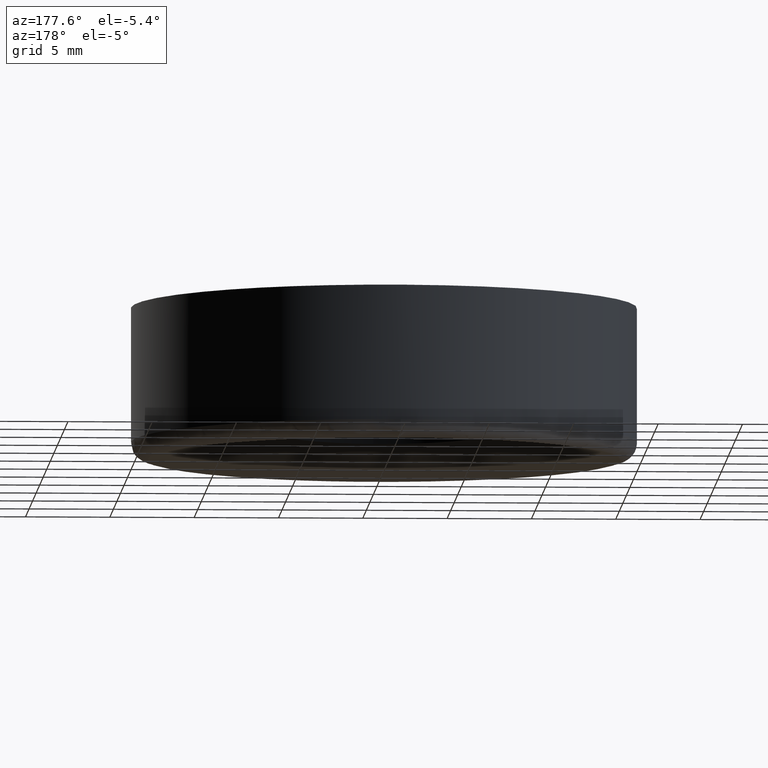
[diagram: clean part render]
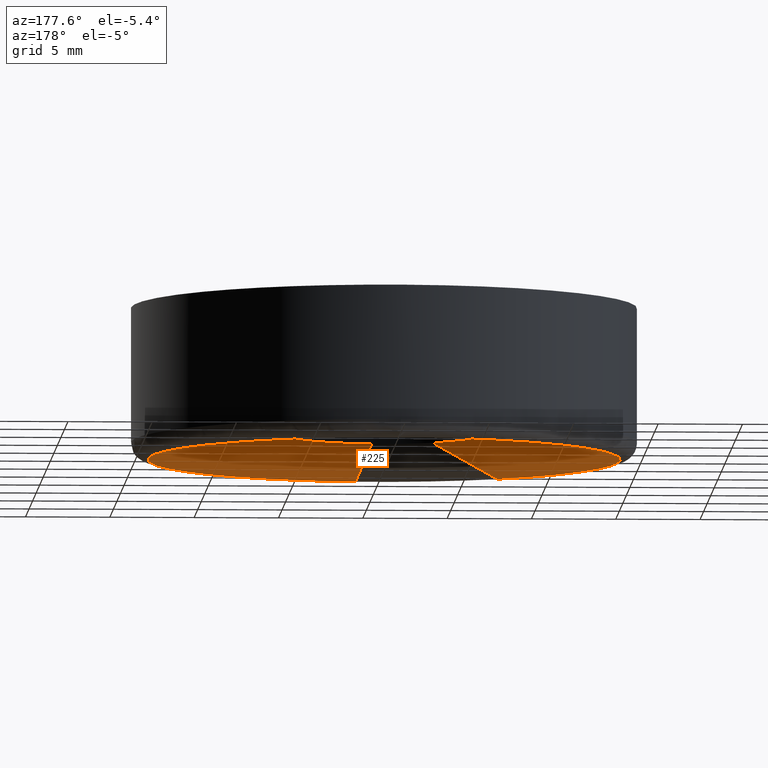
[diagram: same view with one face highlighted and labeled with its STEP entity id]
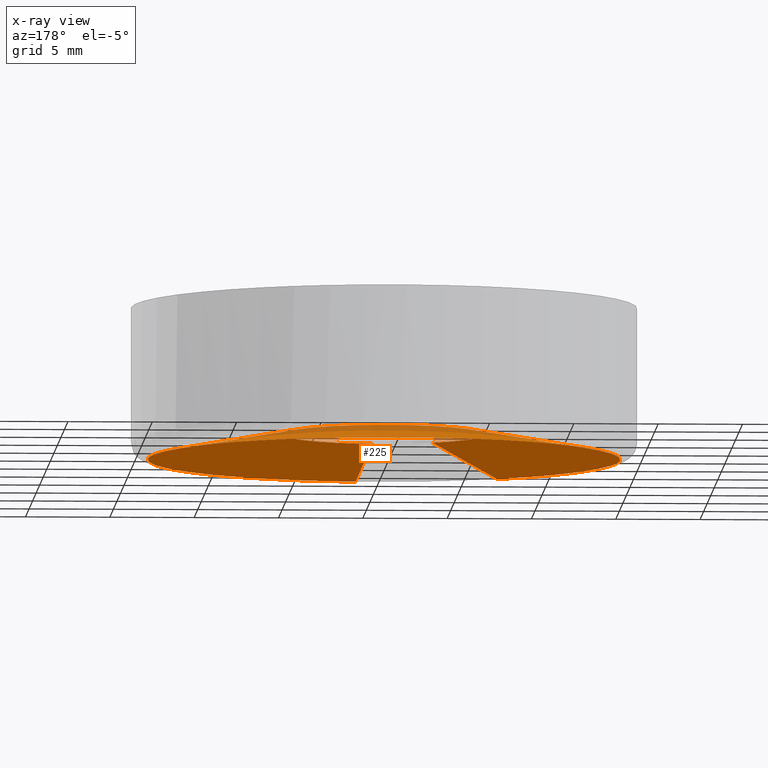
[diagram: x-ray of the same camera — body ghosted, the highlighted face saturated]
A machine part, auxiliary view. The second image highlights one B-rep face of the part: STEP entity #225.
The next image is the same camera in x-ray: the body ghosted, the highlighted face saturated — about 8% of this face is hidden behind the body in this view.
In plain terms, the highlighted face is a freeform B-spline surface patch.
Its self-contained STEP definition (entity closure, byte-faithful):
#44=CARTESIAN_POINT('',(-2.989697942071856,-4.970081107504311,1.537499999999898));
#45=CARTESIAN_POINT('',(-5.547891259649319,-3.431227891319311,1.537499999999898));
#46=CARTESIAN_POINT('',(-5.782120535652139,-0.455062755221500,1.537499999999898));
#47=CARTESIAN_POINT('',(-6.237183290873639,5.327057780430638,1.537499999999898));
#48=CARTESIAN_POINT('',(-0.455062755221500,5.782120535652139,1.537499999999898));
#49=CARTESIAN_POINT('',(5.327057780430638,6.237183290873639,1.537499999999898));
#50=CARTESIAN_POINT('',(5.782120535652139,0.455062755221500,1.537499999999898));
#51=CARTESIAN_POINT('',(6.237183290873639,-5.327057780430638,1.537499999999898));
#52=CARTESIAN_POINT('',(0.455062755221500,-5.782120535652139,1.537499999999898));
#53=CARTESIAN_POINT('',(-7.322182632263916,-12.172414160706678,-0.038437499999997));
#54=CARTESIAN_POINT('',(-13.587550921261821,-8.403550378653588,-0.038437499999997));
#55=CARTESIAN_POINT('',(-14.161210725679080,-1.114511454814036,-0.038437499999997));
#56=CARTESIAN_POINT('',(-15.275722180493107,13.046699270865039,-0.038437499999997));
#57=CARTESIAN_POINT('',(-1.114511454814036,14.161210725679080,-0.038437499999997));
#58=CARTESIAN_POINT('',(13.046699270865039,15.275722180493107,-0.038437499999997));
#59=CARTESIAN_POINT('',(14.161210725679080,1.114511454814036,-0.038437499999997));
#60=CARTESIAN_POINT('',(15.275722180493107,-13.046699270865039,-0.038437499999997));
#61=CARTESIAN_POINT('',(1.114511454814036,-14.161210725679080,-0.038437499999997));
#69=(BOUNDED_SURFACE()B_SPLINE_SURFACE(2,1,((#44,#53),(#45,#54),(#46,#55),(#47,#56),(#48,#57),(#49,#58),(#50,#59),(#51,#60),(#52,#61)),.UNSPECIFIED.,.F.,.F.,.U.)B_SPLINE_SURFACE_WITH_KNOTS((3,2,2,2,3),(2,2),(0.0,14.121368768423549,37.656983382462798,61.192597996502052,84.728212610541306),(0.0,8.551467944388604),.UNSPECIFIED.)GEOMETRIC_REPRESENTATION_ITEM()RATIONAL_B_SPLINE_SURFACE(((0.859411254969543,0.859411254969543),(0.824264068711928,0.824264068711928),(1.0,1.0),(0.707106781186548,0.707106781186548),(1.0,1.0),(0.707106781186548,0.707106781186548),(1.0,1.0),(0.707106781186548,0.707106781186548),(1.0,1.0)))REPRESENTATION_ITEM('')SURFACE());
#70=CARTESIAN_POINT('',(-7.216511091337301,-11.996745991237420,0.000000356857896));
#71=VERTEX_POINT('',#70);
#72=CARTESIAN_POINT('',(-13.995578650399141,-0.351821336239177,1.874299E-016));
#73=VERTEX_POINT('',#72);
#74=CARTESIAN_POINT('',(-7.216511091337301,-11.996745991237422,0.000000356857896));
#75=CARTESIAN_POINT('',(-13.802436730045450,-8.035055702131242,0.000000178428948));
#76=CARTESIAN_POINT('',(-13.995578650399141,-0.351821336239177,1.874299E-016));
#84=(BOUNDED_CURVE()B_SPLINE_CURVE(2,(#74,#75,#76),.UNSPECIFIED.,.F.,.U.)B_SPLINE_CURVE_WITH_KNOTS((3,3),(0.838022801736637,0.995579891769269),.UNSPECIFIED.)CURVE()GEOMETRIC_REPRESENTATION_ITEM()RATIONAL_B_SPLINE_CURVE((0.866368646969517,0.811763793235545,0.989826157680359))REPRESENTATION_ITEM(''));
#85=EDGE_CURVE('',#71,#73,#84,.T.);
#86=ORIENTED_EDGE('',*,*,#85,.T.);
#87=CARTESIAN_POINT('',(-14.0,0.0,0.0));
#88=VERTEX_POINT('',#87);
#89=CARTESIAN_POINT('',(-13.995578650399141,-0.351821336239177,1.874299E-016));
#90=CARTESIAN_POINT('',(-14.000000000000005,-0.175938449748880,0.0));
#91=CARTESIAN_POINT('',(-14.0,0.0,0.0));
#99=(BOUNDED_CURVE()B_SPLINE_CURVE(2,(#89,#90,#91),.UNSPECIFIED.,.F.,.U.)B_SPLINE_CURVE_WITH_KNOTS((3,3),(0.995579891769269,1.0),.UNSPECIFIED.)CURVE()GEOMETRIC_REPRESENTATION_ITEM()RATIONAL_B_SPLINE_CURVE((0.989826157680358,0.994821521091189,1.0))REPRESENTATION_ITEM(''));
#100=EDGE_CURVE('',#73,#88,#99,.T.);
#101=ORIENTED_EDGE('',*,*,#100,.T.);
#102=CARTESIAN_POINT('',(-0.351821336244475,13.995578650466770,1.874299E-016));
#103=VERTEX_POINT('',#102);
#104=CARTESIAN_POINT('',(-14.0,0.0,0.0));
#105=CARTESIAN_POINT('',(-14.0,13.652490266480006,0.0));
#106=CARTESIAN_POINT('',(-0.351821336244475,13.995578650466770,1.874299E-016));
#114=(BOUNDED_CURVE()B_SPLINE_CURVE(2,(#104,#105,#106),.UNSPECIFIED.,.F.,.U.)B_SPLINE_CURVE_WITH_KNOTS((3,3),(0.0,0.245579891769179),.UNSPECIFIED.)CURVE()GEOMETRIC_REPRESENTATION_ITEM()RATIONAL_B_SPLINE_CURVE((1.0,0.712285260095464,0.989826157680155))REPRESENTATION_ITEM(''));
#115=EDGE_CURVE('',#88,#103,#114,.T.);
#116=ORIENTED_EDGE('',*,*,#115,.T.);
#117=CARTESIAN_POINT('',(14.0,0.0,0.0));
#118=VERTEX_POINT('',#117);
#119=CARTESIAN_POINT('',(-0.351821336244475,13.995578650466772,1.874299E-016));
#120=CARTESIAN_POINT('',(-0.175938449752476,13.999999999999998,0.0));
#121=CARTESIAN_POINT('',(0.0,14.0,0.0));
#122=CARTESIAN_POINT('',(13.999999999999998,13.999999999999998,0.0));
#123=CARTESIAN_POINT('',(14.0,0.0,0.0));
#131=(BOUNDED_CURVE()B_SPLINE_CURVE(2,(#119,#120,#121,#122,#123),.UNSPECIFIED.,.F.,.U.)B_SPLINE_CURVE_WITH_KNOTS((3,2,3),(0.245579891769179,0.250000000000000,0.500000000000000),.UNSPECIFIED.)CURVE()GEOMETRIC_REPRESENTATION_ITEM()RATIONAL_B_SPLINE_CURVE((0.989826157680155,0.994821521091084,1.0,0.707106781186547,1.0))REPRESENTATION_ITEM(''));
#132=EDGE_CURVE('',#103,#118,#131,.T.);
#133=ORIENTED_EDGE('',*,*,#132,.T.);
#134=CARTESIAN_POINT('',(1.098427340218535,-13.956842672265889,-8.160243E-013));
#135=VERTEX_POINT('',#134);
#136=CARTESIAN_POINT('',(14.0,0.0,0.0));
#137=CARTESIAN_POINT('',(14.000000000000004,-12.941466883162205,0.0));
#138=CARTESIAN_POINT('',(1.098427340218535,-13.956842672265889,-8.160243E-013));
#146=(BOUNDED_CURVE()B_SPLINE_CURVE(2,(#136,#137,#138),.UNSPECIFIED.,.F.,.U.)B_SPLINE_CURVE_WITH_KNOTS((3,3),(0.500000000000000,0.736331300632071),.UNSPECIFIED.)CURVE()GEOMETRIC_REPRESENTATION_ITEM()RATIONAL_B_SPLINE_CURVE((1.0,0.723120658606012,0.969723356170363))REPRESENTATION_ITEM(''));
#147=EDGE_CURVE('',#118,#135,#146,.T.);
#148=ORIENTED_EDGE('',*,*,#147,.T.);
#149=CARTESIAN_POINT('',(0.470753693263366,-5.981502167027508,1.500000356033137));
#150=VERTEX_POINT('',#149);
#151=CARTESIAN_POINT('',(0.470753693263366,-5.981502167027508,1.500000356033137));
#152=CARTESIAN_POINT('',(1.098427340218535,-13.956842672265889,-8.160243E-013));
#153=QUASI_UNIFORM_CURVE('',1,(#151,#152),.UNSPECIFIED.,.F.,.U.);
#154=EDGE_CURVE('',#150,#135,#153,.T.);
#155=ORIENTED_EDGE('',*,*,#154,.F.);
#156=CARTESIAN_POINT('',(6.0,0.0,1.499999999999900));
#157=VERTEX_POINT('',#156);
#158=CARTESIAN_POINT('',(6.0,0.0,1.499999999999900));
#159=CARTESIAN_POINT('',(5.999999925509326,-5.546342684412841,1.500000178016519));
#160=CARTESIAN_POINT('',(0.470753693263366,-5.981502167027508,1.500000356033137));
#168=(BOUNDED_CURVE()B_SPLINE_CURVE(2,(#158,#159,#160),.UNSPECIFIED.,.F.,.U.)B_SPLINE_CURVE_WITH_KNOTS((3,3),(0.500000000000000,0.736331321614731),.UNSPECIFIED.)CURVE()GEOMETRIC_REPRESENTATION_ITEM()RATIONAL_B_SPLINE_CURVE((1.0,0.723120634023297,0.969723399959578))REPRESENTATION_ITEM(''));
#169=EDGE_CURVE('',#157,#150,#168,.T.);
#170=ORIENTED_EDGE('',*,*,#169,.F.);
#171=CARTESIAN_POINT('',(-0.708194922177014,5.958058404555227,1.499999999999903));
#172=VERTEX_POINT('',#171);
#173=CARTESIAN_POINT('',(-0.708194922177014,5.958058404555227,1.499999999999902));
#174=CARTESIAN_POINT('',(-0.355339419604000,6.000000000000001,1.499999999999901));
#175=CARTESIAN_POINT('',(0.0,6.0,1.499999999999900));
#176=CARTESIAN_POINT('',(6.0,6.0,1.499999999999901));
#177=CARTESIAN_POINT('',(6.0,0.0,1.499999999999900));
#185=(BOUNDED_CURVE()B_SPLINE_CURVE(2,(#173,#174,#175,#176,#177),.UNSPECIFIED.,.F.,.U.)B_SPLINE_CURVE_WITH_KNOTS((3,2,3),(0.229562770949563,0.250000000000000,0.500000000000000),.UNSPECIFIED.)CURVE()GEOMETRIC_REPRESENTATION_ITEM()RATIONAL_B_SPLINE_CURVE((0.956027337171368,0.976056296799159,1.0,0.707106781186548,1.0))REPRESENTATION_ITEM(''));
#186=EDGE_CURVE('',#172,#157,#185,.T.);
#187=ORIENTED_EDGE('',*,*,#186,.F.);
#188=CARTESIAN_POINT('',(-6.0,0.0,1.499999999999900));
#189=VERTEX_POINT('',#188);
#190=CARTESIAN_POINT('',(-6.0,0.0,1.499999999999900));
#191=CARTESIAN_POINT('',(-6.000000000000002,5.329056600487015,1.499999999999900));
#192=CARTESIAN_POINT('',(-0.708194922177014,5.958058404555227,1.499999999999902));
#200=(BOUNDED_CURVE()B_SPLINE_CURVE(2,(#190,#191,#192),.UNSPECIFIED.,.F.,.U.)B_SPLINE_CURVE_WITH_KNOTS((3,3),(0.0,0.229562770949563),.UNSPECIFIED.)CURVE()GEOMETRIC_REPRESENTATION_ITEM()RATIONAL_B_SPLINE_CURVE((1.0,0.731050484387389,0.956027337171368))REPRESENTATION_ITEM(''));
#201=EDGE_CURVE('',#189,#172,#200,.T.);
#202=ORIENTED_EDGE('',*,*,#201,.F.);
#203=CARTESIAN_POINT('',(-3.092790974559728,-5.141463214658250,1.499999999999868));
#204=VERTEX_POINT('',#203);
#205=CARTESIAN_POINT('',(-3.092790974559728,-5.141463214658251,1.499999999999867));
#206=CARTESIAN_POINT('',(-6.000000000000001,-3.392663415912824,1.499999999999901));
#207=CARTESIAN_POINT('',(-6.0,0.0,1.499999999999900));
#215=(BOUNDED_CURVE()B_SPLINE_CURVE(2,(#205,#206,#207),.UNSPECIFIED.,.F.,.U.)B_SPLINE_CURVE_WITH_KNOTS((3,3),(0.838022804310851,1.0),.UNSPECIFIED.)CURVE()GEOMETRIC_REPRESENTATION_ITEM()RATIONAL_B_SPLINE_CURVE((0.866368645185217,0.810231911120915,1.0))REPRESENTATION_ITEM(''));
#216=EDGE_CURVE('',#204,#189,#215,.T.);
#217=ORIENTED_EDGE('',*,*,#216,.F.);
#218=CARTESIAN_POINT('',(-3.092790974559728,-5.141463214658250,1.499999999999868));
#219=CARTESIAN_POINT('',(-7.216511091337301,-11.996745991237420,0.000000356857896));
#220=QUASI_UNIFORM_CURVE('',1,(#218,#219),.UNSPECIFIED.,.F.,.U.);
#221=EDGE_CURVE('',#204,#71,#220,.T.);
#222=ORIENTED_EDGE('',*,*,#221,.T.);
#223=EDGE_LOOP('',(#86,#101,#116,#133,#148,#155,#170,#187,#202,#217,#222));
#224=FACE_OUTER_BOUND('',#223,.T.);
#225=ADVANCED_FACE('',(#224),#69,.F.);